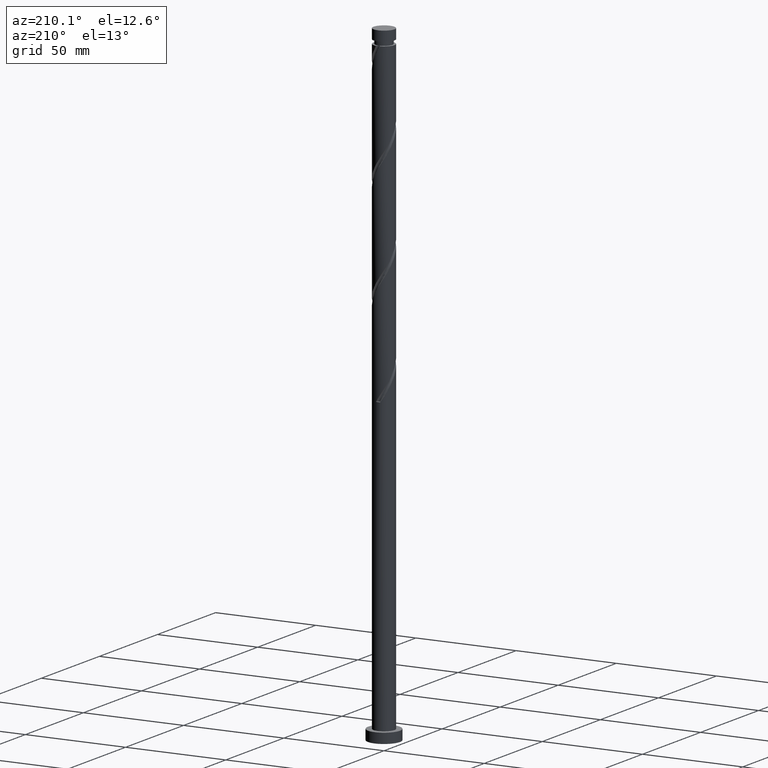
[diagram: clean part render]
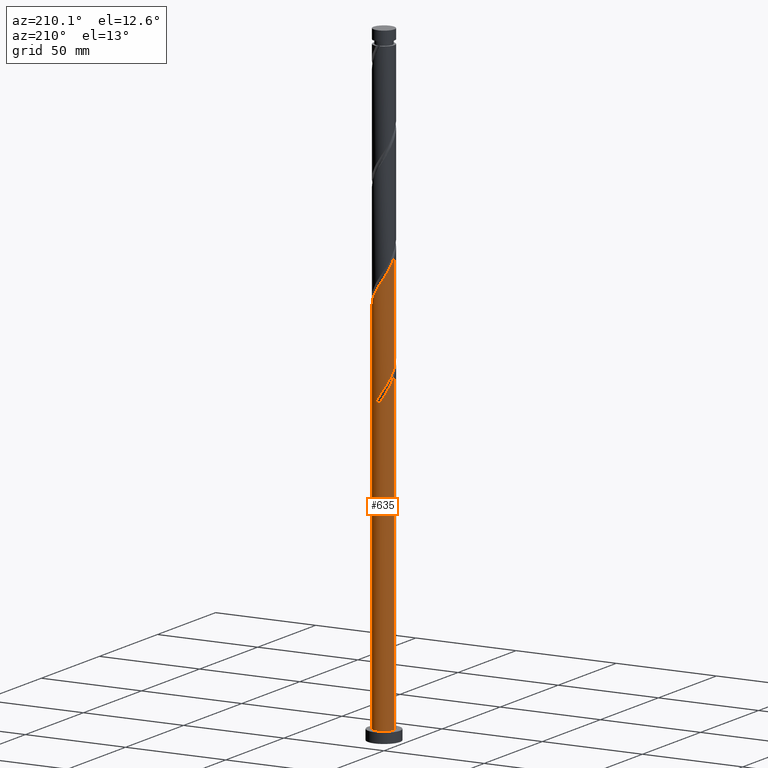
[diagram: same view with one face highlighted and labeled with its STEP entity id]
A machine part, auxiliary view. The second image highlights one B-rep face of the part: STEP entity #635.
In plain terms, the highlighted cylindrical surface (edge-blend (fillet) strip) has radius 5.25 mm, axis along (-0, -0, -1).
Its self-contained STEP definition (entity closure, byte-faithful):
#5 = CARTESIAN_POINT ( 'NONE',  ( -5.249999999999998224, 2.850822742611512929E-15, 165.3083183948922397 ) ) ;
#15 = CARTESIAN_POINT ( 'NONE',  ( -5.250000000000007994, -1.388096937501929922E-15, 161.9592842390802048 ) ) ;
#39 = CARTESIAN_POINT ( 'NONE',  ( -5.250000000000007994, -1.388096937501929922E-15, 161.9592842390802332 ) ) ;
#67 = CARTESIAN_POINT ( 'NONE',  ( -0.4650345331758813372, 5.262713567687611338, 202.0713013169862222 ) ) ;
#71 = CARTESIAN_POINT ( 'NONE',  ( -4.673905723312233640, 2.391046902423545006, 158.0088013169862506 ) ) ;
#72 = EDGE_CURVE ( 'NONE', #526, #668, #1314, .T. ) ;
#74 = CARTESIAN_POINT ( 'NONE',  ( -4.539770163101061407, 2.702387477544005545, 160.8213013169862506 ) ) ;
#82 = CARTESIAN_POINT ( 'NONE',  ( -3.824610861482512281, 3.644826878028541106, 158.9463013169862791 ) ) ;
#158 = CARTESIAN_POINT ( 'NONE',  ( -2.917669601085083553, 4.404499439377112857, 157.0713013169862791 ) ) ;
#177 = ORIENTED_EDGE ( 'NONE', *, *, #1407, .T. ) ;
#195 = ORIENTED_EDGE ( 'NONE', *, *, #72, .T. ) ;
#209 = CARTESIAN_POINT ( 'NONE',  ( -5.249999999999996447, 0.5276448530111038648, 164.4700473159286673 ) ) ;
#306 = LINE ( 'NONE', #688, #1729 ) ;
#307 = CARTESIAN_POINT ( 'NONE',  ( -3.173607177786278655, 4.182190512291795059, 154.2588013169862506 ) ) ;
#317 = DIRECTION ( 'NONE',  ( -0.000000000000000000, -0.000000000000000000, -1.000000000000000000 ) ) ;
#324 = CARTESIAN_POINT ( 'NONE',  ( -4.404499439377119963, 2.917669601085089326, 209.5713013169862222 ) ) ;
#328 = AXIS2_PLACEMENT_3D ( 'NONE', #1716, #844, #1881 ) ;
#332 = EDGE_LOOP ( 'NONE', ( #417, #1866, #177, #893, #1786, #195, #1098, #1220 ) ) ;
#333 = CARTESIAN_POINT ( 'NONE',  ( -5.248479918644243902, 0.1263271292644601862, 161.7588013169862506 ) ) ;
#340 = CARTESIAN_POINT ( 'NONE',  ( 5.250000000000007994, 0.5276448530110899870, 189.0475553180437771 ) ) ;
#349 = CARTESIAN_POINT ( 'NONE',  ( -4.673905723312233640, 2.391046902423545006, 210.5088013169862222 ) ) ;
#371 = CARTESIAN_POINT ( 'NONE',  ( -3.371140231283797029, 4.024663158702826316, 158.0088013169862506 ) ) ;
#389 = EDGE_CURVE ( 'NONE', #1533, #835, #457, .T. ) ;
#398 =( BOUNDED_CURVE ( )  B_SPLINE_CURVE ( 2, ( #592, #1787, #449, #1506, #307, #1378, #1232, #1366, #71, #646, #498, #1515, #333, #508, #39 ),
 .UNSPECIFIED., .F., .T. ) 
 B_SPLINE_CURVE_WITH_KNOTS ( ( 3, 2, 2, 2, 2, 2, 2, 3 ),
 ( 0.000000000000000000, 0.008928571428571396851, 0.01785714285714290472, 0.02678571428571430157, 0.03571428571428569843, 0.04464285714285709528, 0.05357142857142860315, 0.05453034012992214602 ),
 .UNSPECIFIED. ) 
 CURVE ( )  GEOMETRIC_REPRESENTATION_ITEM ( )  RATIONAL_B_SPLINE_CURVE ( ( 0.9090909090909352619, 0.9033747362666101344, 0.9090909090909352619, 0.9033747362666101344, 0.9090909090909352619, 0.9033747362666101344, 0.9090909090909352619, 0.9033747362666101344, 0.9090909090909352619, 0.9033747362666101344, 0.9090909090909352619, 0.9033747362666101344, 0.9090909090909352619, 0.9084770030214769365, 0.9079949616362051890 ) ) 
 REPRESENTATION_ITEM ( '' )  );
#402 = EDGE_CURVE ( 'NONE', #1365, #1533, #1579, .T. ) ;
#417 = ORIENTED_EDGE ( 'NONE', *, *, #402, .F. ) ;
#436 = FACE_OUTER_BOUND ( 'NONE', #332, .T. ) ;
#449 = CARTESIAN_POINT ( 'NONE',  ( -2.163413281146018274, 4.783528297706736154, 152.3838013169862791 ) ) ;
#457 = LINE ( 'NONE', #1531, #1101 ) ;
#466 = CARTESIAN_POINT ( 'NONE',  ( 2.917669601085090214, 4.404499439377119963, 196.4463013169861938 ) ) ;
#488 = CARTESIAN_POINT ( 'NONE',  ( -0.7176887917048005994, 5.234246269600866697, 153.3213013169862506 ) ) ;
#495 = CARTESIAN_POINT ( 'NONE',  ( 3.371140231283805466, 4.024663158702830756, 195.5088013169863359 ) ) ;
#498 = CARTESIAN_POINT ( 'NONE',  ( -5.088779138424112780, 1.291056497733401587, 159.8838013169862222 ) ) ;
#508 = CARTESIAN_POINT ( 'NONE',  ( -5.250000000000009770, 0.06317271012354498672, 161.8589215508551149 ) ) ;
#523 = CARTESIAN_POINT ( 'NONE',  ( -5.250000000000000000, 0.000000000000000000, 5.000000000000000000 ) ) ;
#526 = VERTEX_POINT ( 'NONE', #1097 ) ;
#532 = CARTESIAN_POINT ( 'NONE',  ( -5.250000000000007994, -1.388096937501929922E-15, 214.4592842390802048 ) ) ;
#592 = CARTESIAN_POINT ( 'NONE',  ( -1.044736808961953756, 5.145000000000009344, 150.5088013169862791 ) ) ;
#598 = CARTESIAN_POINT ( 'NONE',  ( -2.391046902423538789, 4.673905723312224758, 156.1338013169862791 ) ) ;
#622 = CARTESIAN_POINT ( 'NONE',  ( -3.644826878028546435, 3.824610861482520274, 207.6963013169863075 ) ) ;
#635 = ADVANCED_FACE ( 'NONE', ( #436 ), #1319, .T. ) ;
#636 = CARTESIAN_POINT ( 'NONE',  ( 5.250000000000007994, 7.015113555117280410E-16, 188.2092842390802332 ) ) ;
#640 = CARTESIAN_POINT ( 'NONE',  ( -1.864424203761996690, 4.943312007247341100, 155.1963013169862506 ) ) ;
#643 = CARTESIAN_POINT ( 'NONE',  ( 4.539770163101068512, 2.702387477544009542, 192.6963013169862222 ) ) ;
#646 = CARTESIAN_POINT ( 'NONE',  ( -4.943312007247349094, 1.864424203762000465, 158.9463013169862791 ) ) ;
#655 = CARTESIAN_POINT ( 'NONE',  ( -4.943312007247349094, 1.864424203762000465, 211.4463013169863075 ) ) ;
#668 = VERTEX_POINT ( 'NONE', #1896 ) ;
#671 = CARTESIAN_POINT ( 'NONE',  ( -5.249999999999998224, 2.850822742611512929E-15, 165.3083183948922397 ) ) ;
#688 = CARTESIAN_POINT ( 'NONE',  ( -5.250000000000000000, 0.000000000000000000, 315.0000000000000000 ) ) ;
#702 = CARTESIAN_POINT ( 'NONE',  ( 5.250000000000000000, 6.429395695523604153E-16, 315.0000000000000000 ) ) ;
#768 = CARTESIAN_POINT ( 'NONE',  ( -5.250000000000007994, 0.06317271012354133686, 214.3589215508550865 ) ) ;
#807 = CARTESIAN_POINT ( 'NONE',  ( 2.391046902423545895, 4.673905723312233640, 197.3838013169862506 ) ) ;
#811 = DIRECTION ( 'NONE',  ( 1.000000000000000000, 0.000000000000000000, 0.000000000000000000 ) ) ;
#824 = CARTESIAN_POINT ( 'NONE',  ( -4.783528297706726384, 2.163413281146015610, 161.7588013169862506 ) ) ;
#835 = VERTEX_POINT ( 'NONE', #671 ) ;
#843 = AXIS2_PLACEMENT_3D ( 'NONE', #1885, #1755, #882 ) ;
#844 = DIRECTION ( 'NONE',  ( 0.000000000000000000, -0.000000000000000000, -1.000000000000000000 ) ) ;
#882 = DIRECTION ( 'NONE',  ( -1.000000000000000000, 0.000000000000000000, 0.000000000000000000 ) ) ;
#893 = ORIENTED_EDGE ( 'NONE', *, *, #1873, .F. ) ;
#915 = CARTESIAN_POINT ( 'NONE',  ( -1.624439084748026341, 5.027286432312403797, 203.9463013169862506 ) ) ;
#924 = CARTESIAN_POINT ( 'NONE',  ( 5.027286432312405573, 1.624439084748025897, 190.8213013169863075 ) ) ;
#926 = CARTESIAN_POINT ( 'NONE',  ( 0.000000000000000000, 0.000000000000000000, 5.000000000000000000 ) ) ;
#942 = CARTESIAN_POINT ( 'NONE',  ( -5.088779138424112780, 1.291056497733401587, 212.3838013169862506 ) ) ;
#943 = DIRECTION ( 'NONE',  ( -0.000000000000000000, -0.000000000000000000, -1.000000000000000000 ) ) ;
#962 = CARTESIAN_POINT ( 'NONE',  ( -4.182190512291787066, 3.173607177786273326, 159.8838013169862222 ) ) ;
#1040 = CARTESIAN_POINT ( 'NONE',  ( 5.145000000000008455, 1.044736808961953756, 189.8838013169862791 ) ) ;
#1049 = CARTESIAN_POINT ( 'NONE',  ( -5.250000000000007994, -1.388096937501929922E-15, 214.4592842390802048 ) ) ;
#1050 = EDGE_CURVE ( 'NONE', #835, #668, #1785, .T. ) ;
#1051 = CARTESIAN_POINT ( 'NONE',  ( -2.163413281146018274, 4.783528297706736154, 204.8838013169862222 ) ) ;
#1076 = CARTESIAN_POINT ( 'NONE',  ( -0.1263271292644588817, 5.248479918644234132, 152.3838013169862222 ) ) ;
#1082 = CARTESIAN_POINT ( 'NONE',  ( 1.864424203762002241, 4.943312007247349094, 198.3213013169862791 ) ) ;
#1097 = CARTESIAN_POINT ( 'NONE',  ( -1.044736808961953756, 5.145000000000009344, 150.5088013169862791 ) ) ;
#1098 = ORIENTED_EDGE ( 'NONE', *, *, #1050, .F. ) ;
#1101 = VECTOR ( 'NONE', #317, 1000.000000000000000 ) ;
#1201 = AXIS2_PLACEMENT_3D ( 'NONE', #926, #1541, #811 ) ;
#1210 = CARTESIAN_POINT ( 'NONE',  ( 4.182190512291795059, 3.173607177786278211, 193.6338013169862791 ) ) ;
#1218 = CARTESIAN_POINT ( 'NONE',  ( 4.783528297706737042, 2.163413281146017386, 191.7588013169863075 ) ) ;
#1220 = ORIENTED_EDGE ( 'NONE', *, *, #389, .F. ) ;
#1223 = CARTESIAN_POINT ( 'NONE',  ( -1.291056497733398478, 5.088779138424103898, 154.2588013169862791 ) ) ;
#1232 = CARTESIAN_POINT ( 'NONE',  ( -4.024663158702832533, 3.371140231283804578, 156.1338013169862506 ) ) ;
#1263 = VERTEX_POINT ( 'NONE', #1773 ) ;
#1274 = DIRECTION ( 'NONE',  ( -0.000000000000000000, -0.000000000000000000, -1.000000000000000000 ) ) ;
#1314 = CIRCLE ( 'NONE', #328, 5.250000000000000000 ) ;
#1319 = CYLINDRICAL_SURFACE ( 'NONE', #843, 5.250000000000000000 ) ;
#1320 = EDGE_CURVE ( 'NONE', #526, #1874, #398, .T. ) ;
#1353 = CARTESIAN_POINT ( 'NONE',  ( -1.044736808961953312, 5.145000000000009344, 203.0088013169861938 ) ) ;
#1365 = VERTEX_POINT ( 'NONE', #1679 ) ;
#1366 = CARTESIAN_POINT ( 'NONE',  ( -4.404499439377119963, 2.917669601085089326, 157.0713013169862222 ) ) ;
#1378 = CARTESIAN_POINT ( 'NONE',  ( -3.644826878028546435, 3.824610861482520274, 155.1963013169862791 ) ) ;
#1380 = CARTESIAN_POINT ( 'NONE',  ( -5.027286432312394915, 1.624439084748025230, 162.6963013169862791 ) ) ;
#1394 = CARTESIAN_POINT ( 'NONE',  ( -3.173607177786278655, 4.182190512291795059, 206.7588013169861938 ) ) ;
#1407 = EDGE_CURVE ( 'NONE', #1263, #1908, #1427, .T. ) ;
#1427 = CIRCLE ( 'NONE', #1201, 5.250000000000000000 ) ;
#1460 = VECTOR ( 'NONE', #943, 1000.000000000000000 ) ;
#1503 = CARTESIAN_POINT ( 'NONE',  ( 0.7176887917048040411, 5.234246269600876467, 200.1963013169862506 ) ) ;
#1506 = CARTESIAN_POINT ( 'NONE',  ( -2.702387477544009986, 4.539770163101068512, 153.3213013169862222 ) ) ;
#1512 = CARTESIAN_POINT ( 'NONE',  ( 0.1263271292644615185, 5.248479918644243902, 201.1338013169862222 ) ) ;
#1515 = CARTESIAN_POINT ( 'NONE',  ( -5.234246269600876467, 0.7176887917048030419, 160.8213013169862791 ) ) ;
#1531 = CARTESIAN_POINT ( 'NONE',  ( -5.250000000000000000, 0.000000000000000000, 315.0000000000000000 ) ) ;
#1533 = VERTEX_POINT ( 'NONE', #1049 ) ;
#1536 = CARTESIAN_POINT ( 'NONE',  ( 1.044736808961955088, 5.144999999999997797, 150.5088013169862506 ) ) ;
#1541 = DIRECTION ( 'NONE',  ( 0.000000000000000000, 0.000000000000000000, 1.000000000000000000 ) ) ;
#1551 = LINE ( 'NONE', #702, #1460 ) ;
#1579 =( BOUNDED_CURVE ( )  B_SPLINE_CURVE ( 2, ( #636, #340, #1040, #924, #1218, #643, #1210, #1653, #495, #466, #807, #1082, #1676, #1503, #1512, #67, #1353, #915, #1051, #1827, #1394, #622, #1646, #324, #349, #655, #942, #1797, #1637, #768, #532 ),
 .UNSPECIFIED., .F., .T. ) 
 B_SPLINE_CURVE_WITH_KNOTS ( ( 3, 2, 2, 2, 2, 2, 2, 2, 2, 2, 2, 2, 2, 2, 2, 3 ),
 ( 0.1795303401299221113, 0.1875000000000000000, 0.1964285714285713969, 0.2053571428571429047, 0.2142857142857143016, 0.2232142857142856984, 0.2321428571428570953, 0.2410714285714286031, 0.2500000000000000000, 0.2589285714285713969, 0.2678571428571429047, 0.2767857142857143016, 0.2857142857142856984, 0.2946428571428570953, 0.3035714285714286031, 0.3045303401299221946 ),
 .UNSPECIFIED. ) 
 CURVE ( )  GEOMETRIC_REPRESENTATION_ITEM ( )  RATIONAL_B_SPLINE_CURVE ( ( 0.9079949616362054110, 0.9039886423360684597, 0.9090909090909352619, 0.9033747362666101344, 0.9090909090909352619, 0.9033747362666101344, 0.9090909090909352619, 0.9033747362666101344, 0.9090909090909352619, 0.9033747362666101344, 0.9090909090909352619, 0.9033747362666101344, 0.9090909090909352619, 0.9033747362666101344, 0.9090909090909352619, 0.9033747362666101344, 0.9090909090909352619, 0.9033747362666101344, 0.9090909090909352619, 0.9033747362666101344, 0.9090909090909352619, 0.9033747362666101344, 0.9090909090909352619, 0.9033747362666101344, 0.9090909090909352619, 0.9033747362666101344, 0.9090909090909352619, 0.9033747362666101344, 0.9090909090909352619, 0.9084770030214769365, 0.9079949616362051890 ) ) 
 REPRESENTATION_ITEM ( '' )  );
#1637 = CARTESIAN_POINT ( 'NONE',  ( -5.248479918644243902, 0.1263271292644601862, 214.2588013169862222 ) ) ;
#1646 = CARTESIAN_POINT ( 'NONE',  ( -4.024663158702832533, 3.371140231283804578, 208.6338013169862506 ) ) ;
#1653 = CARTESIAN_POINT ( 'NONE',  ( 3.824610861482520274, 3.644826878028545991, 194.5713013169862791 ) ) ;
#1660 = CARTESIAN_POINT ( 'NONE',  ( -5.144999999999996909, 1.044736808961953978, 163.6338013169862791 ) ) ;
#1669 = CARTESIAN_POINT ( 'NONE',  ( 0.4650345331758827250, 5.262713567687604233, 151.4463013169862791 ) ) ;
#1676 = CARTESIAN_POINT ( 'NONE',  ( 1.291056497733402475, 5.088779138424111892, 199.2588013169861938 ) ) ;
#1679 = CARTESIAN_POINT ( 'NONE',  ( 5.250000000000007994, 7.015113555117280410E-16, 188.2092842390802332 ) ) ;
#1716 = CARTESIAN_POINT ( 'NONE',  ( 0.000000000000000000, 0.000000000000000000, 150.5088013169862791 ) ) ;
#1729 = VECTOR ( 'NONE', #1274, 1000.000000000000000 ) ;
#1744 = EDGE_CURVE ( 'NONE', #1365, #1263, #1551, .T. ) ;
#1755 = DIRECTION ( 'NONE',  ( -0.000000000000000000, -0.000000000000000000, -1.000000000000000000 ) ) ;
#1773 = CARTESIAN_POINT ( 'NONE',  ( 5.250000000000000000, 6.429395695523604153E-16, 5.000000000000000000 ) ) ;
#1786 = ORIENTED_EDGE ( 'NONE', *, *, #1320, .F. ) ;
#1785 =( BOUNDED_CURVE ( )  B_SPLINE_CURVE ( 2, ( #5, #209, #1660, #1380, #824, #74, #962, #82, #371, #158, #598, #640, #1223, #488, #1076, #1669, #1536 ),
 .UNSPECIFIED., .F., .T. ) 
 B_SPLINE_CURVE_WITH_KNOTS ( ( 3, 2, 2, 2, 2, 2, 2, 2, 3 ),
 ( 0.9295303401299223056, 0.9375000000000000000, 0.9464285714285713969, 0.9553571428571429047, 0.9642857142857143016, 0.9732142857142856984, 0.9821428571428570953, 0.9910714285714286031, 1.000000000000000000 ),
 .UNSPECIFIED. ) 
 CURVE ( )  GEOMETRIC_REPRESENTATION_ITEM ( )  RATIONAL_B_SPLINE_CURVE ( ( 0.9079949616361979725, 0.9039886423360613543, 0.9090909090909280454, 0.9033747362666029179, 0.9090909090909280454, 0.9033747362666029179, 0.9090909090909280454, 0.9033747362666029179, 0.9090909090909280454, 0.9033747362666029179, 0.9090909090909280454, 0.9033747362666029179, 0.9090909090909280454, 0.9033747362666029179, 0.9090909090909280454, 0.9033747362666029179, 0.9090909090909280454 ) ) 
 REPRESENTATION_ITEM ( '' )  );
#1787 = CARTESIAN_POINT ( 'NONE',  ( -1.624439084748026341, 5.027286432312403797, 151.4463013169862791 ) ) ;
#1797 = CARTESIAN_POINT ( 'NONE',  ( -5.234246269600876467, 0.7176887917048030419, 213.3213013169862506 ) ) ;
#1827 = CARTESIAN_POINT ( 'NONE',  ( -2.702387477544009986, 4.539770163101068512, 205.8213013169862791 ) ) ;
#1866 = ORIENTED_EDGE ( 'NONE', *, *, #1744, .T. ) ;
#1873 = EDGE_CURVE ( 'NONE', #1874, #1908, #306, .T. ) ;
#1874 = VERTEX_POINT ( 'NONE', #15 ) ;
#1881 = DIRECTION ( 'NONE',  ( -1.000000000000000000, 0.000000000000000000, 0.000000000000000000 ) ) ;
#1885 = CARTESIAN_POINT ( 'NONE',  ( 0.000000000000000000, 0.000000000000000000, 315.0000000000000000 ) ) ;
#1896 = CARTESIAN_POINT ( 'NONE',  ( 1.044736808961955088, 5.144999999999997797, 150.5088013169862791 ) ) ;
#1908 = VERTEX_POINT ( 'NONE', #523 ) ;